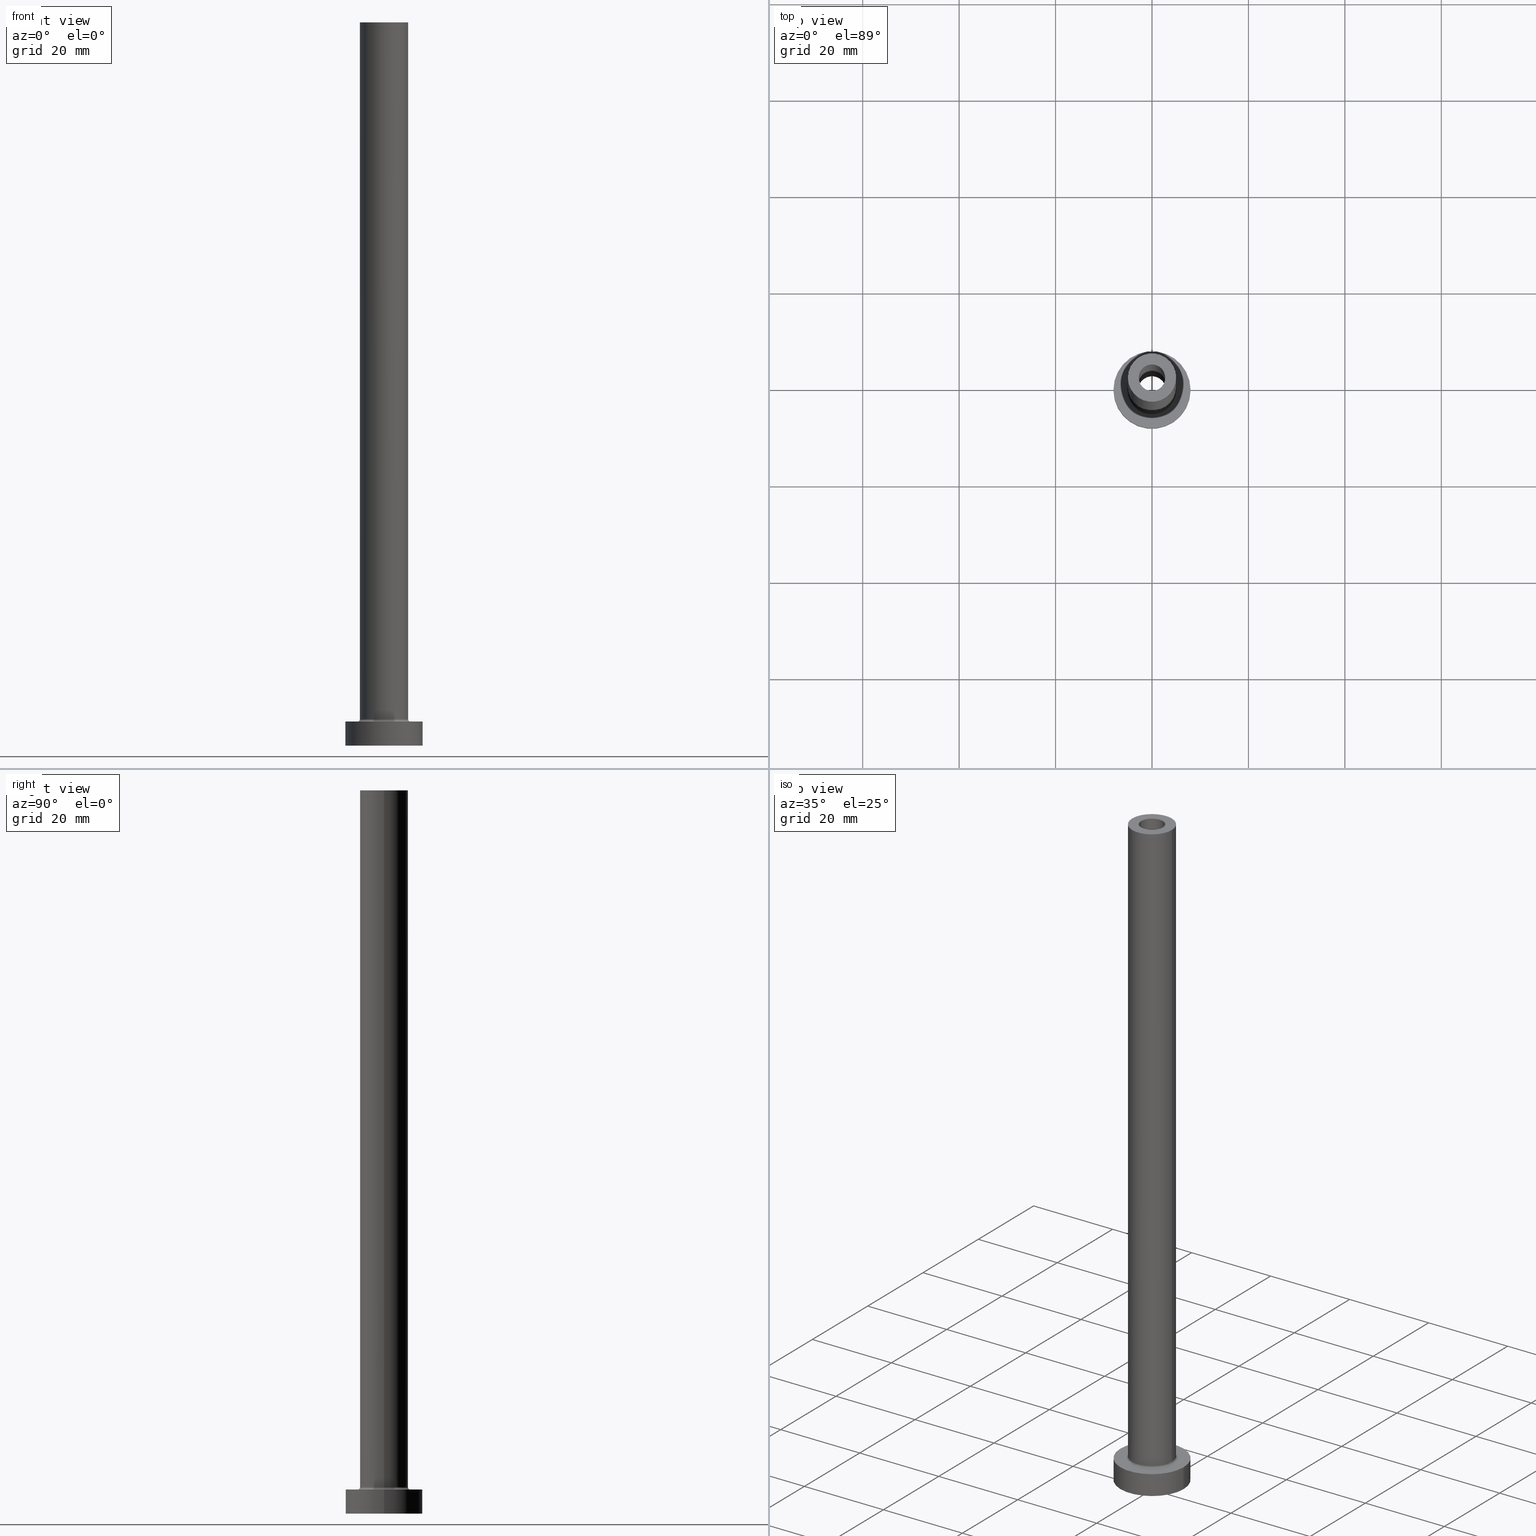
[diagram: canonical four-view strip — front | top / right | iso, engineering-drawing reading convention]
A machine part, canonical four-view strip (front | top / right | iso — engineering-drawing reading convention). The complete STEP part file that produces these views, byte-faithful:
ISO-10303-21;
HEADER;
FILE_DESCRIPTION (( 'STEP AP203' ),
    '1' );
FILE_NAME ('7f42.STEP',
    '2023-02-13T16:15:07',
    ( '' ),
    ( '' ),
    'SwSTEP 2.0',
    'SolidWorks 2019',
    '' );
FILE_SCHEMA (( 'CONFIG_CONTROL_DESIGN' ));
ENDSEC;

DATA;
#1 = EDGE_LOOP ( 'NONE', ( #95, #261 ) ) ;
#2 = EDGE_CURVE ( 'NONE', #277, #102, #246, .T. ) ;
#3 = ORIENTED_EDGE ( 'NONE', *, *, #429, .T. ) ;
#4 = ORIENTED_EDGE ( 'NONE', *, *, #259, .T. ) ;
#5 = AXIS2_PLACEMENT_3D ( 'NONE', #251, #390, #75 ) ;
#6 = FACE_OUTER_BOUND ( 'NONE', #455, .T. ) ;
#7 = DIRECTION ( 'NONE',  ( 1.000000000000000000, 0.000000000000000000, 0.000000000000000000 ) ) ;
#8 = AXIS2_PLACEMENT_3D ( 'NONE', #448, #89, #224 ) ;
#9 = DIRECTION ( 'NONE',  ( 1.000000000000000000, 0.000000000000000000, 0.000000000000000000 ) ) ;
#10 = ADVANCED_FACE ( 'NONE', ( #204, #308 ), #348, .F. ) ;
#11 = AXIS2_PLACEMENT_3D ( 'NONE', #151, #437, #260 ) ;
#12 = DIRECTION ( 'NONE',  ( 1.000000000000000000, 0.000000000000000000, 0.000000000000000000 ) ) ;
#13 = LOCAL_TIME ( 17, 15, 7.000000000000000000, #450 ) ;
#14 = EDGE_CURVE ( 'NONE', #401, #141, #198, .T. ) ;
#15 = ORIENTED_EDGE ( 'NONE', *, *, #51, .T. ) ;
#16 = APPROVAL_STATUS ( 'not_yet_approved' ) ;
#17 = DIRECTION ( 'NONE',  ( 0.000000000000000000, 0.000000000000000000, 1.000000000000000000 ) ) ;
#18 = AXIS2_PLACEMENT_3D ( 'NONE', #442, #165, #125 ) ;
#19 = DIRECTION ( 'NONE',  ( 0.000000000000000000, 0.000000000000000000, 1.000000000000000000 ) ) ;
#20 = LINE ( 'NONE', #451, #279 ) ;
#21 = AXIS2_PLACEMENT_3D ( 'NONE', #323, #148, #81 ) ;
#22 = DIRECTION ( 'NONE',  ( 1.000000000000000000, 0.000000000000000000, 0.000000000000000000 ) ) ;
#23 = FACE_OUTER_BOUND ( 'NONE', #213, .T. ) ;
#24 = AXIS2_PLACEMENT_3D ( 'NONE', #172, #210, #461 ) ;
#25 = DIRECTION ( 'NONE',  ( -0.000000000000000000, -0.000000000000000000, -1.000000000000000000 ) ) ;
#26 = CALENDAR_DATE ( 2023, 13, 2 ) ;
#27 = EDGE_LOOP ( 'NONE', ( #205, #202, #37, #139 ) ) ;
#28 = VERTEX_POINT ( 'NONE', #384 ) ;
#29 = CARTESIAN_POINT ( 'NONE',  ( 8.000000000000000000, 9.797174393178825657E-16, 5.000000000000000000 ) ) ;
#30 = PERSON ( 'NEUR�EN�', 'NEUR�EN�', 'NEUR�EN�', ('NEUR�EN�'), ('NEUR�EN�'), ('NEUR�EN�') ) ;
#31 = DIRECTION ( 'NONE',  ( 0.000000000000000000, 0.000000000000000000, 1.000000000000000000 ) ) ;
#32 = APPROVAL ( #271, 'NEUR�EN�' ) ;
#33 = EDGE_LOOP ( 'NONE', ( #284, #380 ) ) ;
#34 = CARTESIAN_POINT ( 'NONE',  ( 0.000000000000000000, 0.000000000000000000, 150.0000000000000000 ) ) ;
#35 = EDGE_LOOP ( 'NONE', ( #349, #422 ) ) ;
#36 = AXIS2_PLACEMENT_3D ( 'NONE', #406, #371, #55 ) ;
#37 = ORIENTED_EDGE ( 'NONE', *, *, #97, .T. ) ;
#38 = ORIENTED_EDGE ( 'NONE', *, *, #114, .F. ) ;
#39 = CARTESIAN_POINT ( 'NONE',  ( -5.000000000000000000, 0.000000000000000000, 5.500000000000005329 ) ) ;
#40 = EDGE_CURVE ( 'NONE', #67, #378, #375, .T. ) ;
#41 = AXIS2_PLACEMENT_3D ( 'NONE', #413, #268, #304 ) ;
#42 = ADVANCED_FACE ( 'NONE', ( #146 ), #140, .F. ) ;
#43 = DIRECTION ( 'NONE',  ( -0.000000000000000000, -0.000000000000000000, -1.000000000000000000 ) ) ;
#44 = AXIS2_PLACEMENT_3D ( 'NONE', #343, #31, #69 ) ;
#45 = PERSON_AND_ORGANIZATION_ROLE ( 'design_supplier' ) ;
#46 = EDGE_LOOP ( 'NONE', ( #281, #129, #354, #70 ) ) ;
#47 = CARTESIAN_POINT ( 'NONE',  ( -2.750000000000000000, 0.000000000000000000, 150.0000000000000000 ) ) ;
#48 = CARTESIAN_POINT ( 'NONE',  ( 0.000000000000000000, 0.000000000000000000, 150.0000000000000000 ) ) ;
#49 = EDGE_LOOP ( 'NONE', ( #38, #99 ) ) ;
#50 = CARTESIAN_POINT ( 'NONE',  ( 0.000000000000000000, 0.000000000000000000, 5.000000000000000000 ) ) ;
#51 = EDGE_CURVE ( 'NONE', #459, #334, #425, .T. ) ;
#52 = ORGANIZATION ( 'NEUR�EN�', 'NEUR�EN�', '' ) ;
#53 = APPROVAL_ROLE ( '' ) ;
#54 = FACE_OUTER_BOUND ( 'NONE', #35, .T. ) ;
#55 = DIRECTION ( 'NONE',  ( 1.000000000000000000, 0.000000000000000000, 0.000000000000000000 ) ) ;
#56 = CARTESIAN_POINT ( 'NONE',  ( 5.000000000000000000, 6.123233995736766282E-16, 5.500000000000005329 ) ) ;
#57 = CALENDAR_DATE ( 2023, 13, 2 ) ;
#58 = CARTESIAN_POINT ( 'NONE',  ( 0.000000000000000000, 0.000000000000000000, 105.0000000000000000 ) ) ;
#59 = APPROVAL_DATE_TIME ( #280, #32 ) ;
#60 = VECTOR ( 'NONE', #87, 1000.000000000000000 ) ;
#61 = CC_DESIGN_APPROVAL ( #232, ( #331 ) ) ;
#62 = ORIENTED_EDGE ( 'NONE', *, *, #14, .T. ) ;
#63 = DIRECTION ( 'NONE',  ( -0.000000000000000000, -0.000000000000000000, -1.000000000000000000 ) ) ;
#64 = DIRECTION ( 'NONE',  ( 0.000000000000000000, 0.000000000000000000, -1.000000000000000000 ) ) ;
#65 = ADVANCED_FACE ( 'NONE', ( #6 ), #142, .F. ) ;
#66 = ORIENTED_EDGE ( 'NONE', *, *, #118, .F. ) ;
#67 = VERTEX_POINT ( 'NONE', #359 ) ;
#68 = LINE ( 'NONE', #92, #270 ) ;
#69 = DIRECTION ( 'NONE',  ( 1.000000000000000000, 0.000000000000000000, -0.000000000000000000 ) ) ;
#70 = ORIENTED_EDGE ( 'NONE', *, *, #114, .T. ) ;
#71 = DIRECTION ( 'NONE',  ( 1.000000000000000000, 0.000000000000000000, 0.000000000000000000 ) ) ;
#72 = ORIENTED_EDGE ( 'NONE', *, *, #105, .F. ) ;
#73 = CIRCLE ( 'NONE', #407, 8.000000000000000000 ) ;
#74 = VERTEX_POINT ( 'NONE', #39 ) ;
#75 = DIRECTION ( 'NONE',  ( -1.000000000000000000, 0.000000000000000000, 0.000000000000000000 ) ) ;
#76 = DIRECTION ( 'NONE',  ( 1.000000000000000000, 0.000000000000000000, 0.000000000000000000 ) ) ;
#77 = DIRECTION ( 'NONE',  ( 1.000000000000000000, 0.000000000000000000, 0.000000000000000000 ) ) ;
#78 = EDGE_CURVE ( 'NONE', #426, #277, #398, .T. ) ;
#79 = CALENDAR_DATE ( 2023, 13, 2 ) ;
#80 = AXIS2_PLACEMENT_3D ( 'NONE', #158, #63, #269 ) ;
#81 = DIRECTION ( 'NONE',  ( 1.000000000000000000, 0.000000000000000000, 0.000000000000000000 ) ) ;
#82 = EDGE_CURVE ( 'NONE', #322, #319, #295, .T. ) ;
#83 = CIRCLE ( 'NONE', #41, 0.5000000000000004441 ) ;
#84 = CARTESIAN_POINT ( 'NONE',  ( 2.750000000000000000, 3.367778697655220519E-16, 105.0000000000000000 ) ) ;
#85 = CALENDAR_DATE ( 2023, 13, 2 ) ;
#86 = EDGE_LOOP ( 'NONE', ( #247, #170 ) ) ;
#87 = DIRECTION ( 'NONE',  ( 0.000000000000000000, 0.000000000000000000, -1.000000000000000000 ) ) ;
#88 = EDGE_CURVE ( 'NONE', #387, #74, #98, .T. ) ;
#89 = DIRECTION ( 'NONE',  ( 0.000000000000000000, 0.000000000000000000, 1.000000000000000000 ) ) ;
#90 = PERSON_AND_ORGANIZATION_ROLE ( 'classification_officer' ) ;
#91 = AXIS2_PLACEMENT_3D ( 'NONE', #209, #100, #273 ) ;
#92 = CARTESIAN_POINT ( 'NONE',  ( -5.000000000000000000, 0.000000000000000000, 150.0000000000000000 ) ) ;
#93 = DIRECTION ( 'NONE',  ( -1.000000000000000000, 0.000000000000000000, 0.000000000000000000 ) ) ;
#94 = CYLINDRICAL_SURFACE ( 'NONE', #306, 2.750000000000000000 ) ;
#95 = ORIENTED_EDGE ( 'NONE', *, *, #105, .T. ) ;
#96 = LINE ( 'NONE', #234, #263 ) ;
#97 = EDGE_CURVE ( 'NONE', #387, #401, #254, .T. ) ;
#98 = CIRCLE ( 'NONE', #358, 5.000000000000000000 ) ;
#99 = ORIENTED_EDGE ( 'NONE', *, *, #51, .F. ) ;
#100 = DIRECTION ( 'NONE',  ( 0.000000000000000000, 0.000000000000000000, 1.000000000000000000 ) ) ;
#101 = AXIS2_PLACEMENT_3D ( 'NONE', #58, #109, #138 ) ;
#102 = VERTEX_POINT ( 'NONE', #84 ) ;
#103 = ORIENTED_EDGE ( 'NONE', *, *, #2, .F. ) ;
#104 = DIRECTION ( 'NONE',  ( 0.000000000000000000, 0.000000000000000000, 1.000000000000000000 ) ) ;
#105 = EDGE_CURVE ( 'NONE', #130, #435, #330, .T. ) ;
#106 = PERSON_AND_ORGANIZATION ( #30, #52 ) ;
#107 = EDGE_LOOP ( 'NONE', ( #382, #312 ) ) ;
#108 = DIRECTION ( 'NONE',  ( -0.000000000000000000, -0.000000000000000000, -1.000000000000000000 ) ) ;
#109 = DIRECTION ( 'NONE',  ( 0.000000000000000000, 0.000000000000000000, 1.000000000000000000 ) ) ;
#110 = EDGE_LOOP ( 'NONE', ( #274, #438, #180, #207 ) ) ;
#111 = CIRCLE ( 'NONE', #91, 8.000000000000000000 ) ;
#112 = ADVANCED_FACE ( 'NONE', ( #177 ), #300, .T. ) ;
#113 = CLOSED_SHELL ( 'NONE', ( #316, #307, #42, #143, #112, #160, #214, #181, #226, #395, #255, #117, #10, #65 ) ) ;
#114 = EDGE_CURVE ( 'NONE', #334, #459, #427, .T. ) ;
#115 = APPROVAL_DATE_TIME ( #430, #232 ) ;
#116 = AXIS2_PLACEMENT_3D ( 'NONE', #326, #221, #77 ) ;
#117 = ADVANCED_FACE ( 'NONE', ( #386 ), #357, .F. ) ;
#118 = EDGE_CURVE ( 'NONE', #74, #387, #183, .T. ) ;
#119 = AXIS2_PLACEMENT_3D ( 'NONE', #449, #458, #453 ) ;
#120 = DATE_AND_TIME ( #336, #440 ) ;
#121 = PRODUCT_DEFINITION_SHAPE ( 'NONE', 'NONE',  #286 ) ;
#122 = CARTESIAN_POINT ( 'NONE',  ( 0.000000000000000000, 0.000000000000000000, 150.0000000000000000 ) ) ;
#123 = CC_DESIGN_PERSON_AND_ORGANIZATION_ASSIGNMENT ( #363, #397, ( #331 ) ) ;
#124 = CARTESIAN_POINT ( 'NONE',  ( 0.000000000000000000, 0.000000000000000000, 5.500000000000005329 ) ) ;
#125 = DIRECTION ( 'NONE',  ( 1.000000000000000000, 0.000000000000000000, -0.000000000000000000 ) ) ;
#126 = CARTESIAN_POINT ( 'NONE',  ( 0.000000000000000000, 0.000000000000000000, 5.000000000000000000 ) ) ;
#127 = ORIENTED_EDGE ( 'NONE', *, *, #443, .F. ) ;
#128 = CC_DESIGN_PERSON_AND_ORGANIZATION_ASSIGNMENT ( #155, #90, ( #332 ) ) ;
#129 = ORIENTED_EDGE ( 'NONE', *, *, #40, .T. ) ;
#130 = VERTEX_POINT ( 'NONE', #190 ) ;
#131 = DIRECTION ( 'NONE',  ( -1.000000000000000000, 0.000000000000000000, 0.000000000000000000 ) ) ;
#132 = APPLICATION_PROTOCOL_DEFINITION ( 'international standard', 'config_control_design', 1994, #236 ) ;
#133 = AXIS2_PLACEMENT_3D ( 'NONE', #122, #17, #262 ) ;
#134 = VERTEX_POINT ( 'NONE', #215 ) ;
#135 = CARTESIAN_POINT ( 'NONE',  ( -2.899999999999999911, 0.000000000000000000, 105.0000000000000000 ) ) ;
#136 = CC_DESIGN_DATE_AND_TIME_ASSIGNMENT ( #191, #195, ( #332 ) ) ;
#137 = ORIENTED_EDGE ( 'NONE', *, *, #253, .T. ) ;
#138 = DIRECTION ( 'NONE',  ( 1.000000000000000000, 0.000000000000000000, 0.000000000000000000 ) ) ;
#139 = ORIENTED_EDGE ( 'NONE', *, *, #416, .F. ) ;
#140 = TOROIDAL_SURFACE ( 'NONE', #159, 5.500000000000000000, 0.5000000000000000000 ) ;
#141 = VERTEX_POINT ( 'NONE', #258 ) ;
#142 = CYLINDRICAL_SURFACE ( 'NONE', #5, 2.750000000000000000 ) ;
#143 = ADVANCED_FACE ( 'NONE', ( #291 ), #431, .T. ) ;
#144 = AXIS2_PLACEMENT_3D ( 'NONE', #415, #383, #206 ) ;
#145 = DIRECTION ( 'NONE',  ( 0.000000000000000000, 0.000000000000000000, 1.000000000000000000 ) ) ;
#146 = FACE_OUTER_BOUND ( 'NONE', #235, .T. ) ;
#147 = FACE_OUTER_BOUND ( 'NONE', #179, .T. ) ;
#148 = DIRECTION ( 'NONE',  ( -0.000000000000000000, -0.000000000000000000, -1.000000000000000000 ) ) ;
#149 = LOCAL_TIME ( 17, 15, 7.000000000000000000, #411 ) ;
#150 = EDGE_CURVE ( 'NONE', #426, #28, #399, .T. ) ;
#151 = CARTESIAN_POINT ( 'NONE',  ( 5.500000000000000000, 0.000000000000000000, 5.500000000000005329 ) ) ;
#152 = ORIENTED_EDGE ( 'NONE', *, *, #88, .T. ) ;
#153 = DIRECTION ( 'NONE',  ( -1.000000000000000000, 0.000000000000000000, 0.000000000000000000 ) ) ;
#154 = CARTESIAN_POINT ( 'NONE',  ( 0.000000000000000000, 0.000000000000000000, 0.000000000000000000 ) ) ;
#155 = PERSON_AND_ORGANIZATION ( #30, #52 ) ;
#156 = LINE ( 'NONE', #299, #60 ) ;
#157 = MANIFOLD_SOLID_BREP ( 'Odebrat vysunut�m4', #113 ) ;
#158 = CARTESIAN_POINT ( 'NONE',  ( 0.000000000000000000, 0.000000000000000000, 5.000000000000000000 ) ) ;
#159 = AXIS2_PLACEMENT_3D ( 'NONE', #360, #327, #9 ) ;
#160 = ADVANCED_FACE ( 'NONE', ( #147 ), #290, .T. ) ;
#161 = ORIENTED_EDGE ( 'NONE', *, *, #168, .T. ) ;
#162 = DIRECTION ( 'NONE',  ( 0.000000000000000000, 0.000000000000000000, -1.000000000000000000 ) ) ;
#163 = AXIS2_PLACEMENT_3D ( 'NONE', #320, #108, #388 ) ;
#164 = AXIS2_PLACEMENT_3D ( 'NONE', #445, #409, #93 ) ;
#165 = DIRECTION ( 'NONE',  ( 0.000000000000000000, 0.000000000000000000, 1.000000000000000000 ) ) ;
#166 = LINE ( 'NONE', #29, #394 ) ;
#167 = DATE_AND_TIME ( #26, #13 ) ;
#168 = EDGE_CURVE ( 'NONE', #435, #387, #434, .T. ) ;
#169 = ORIENTED_EDGE ( 'NONE', *, *, #429, .F. ) ;
#170 = ORIENTED_EDGE ( 'NONE', *, *, #40, .F. ) ;
#171 = FACE_OUTER_BOUND ( 'NONE', #1, .T. ) ;
#172 = CARTESIAN_POINT ( 'NONE',  ( 0.000000000000000000, 0.000000000000000000, 105.0000000000000000 ) ) ;
#173 = CIRCLE ( 'NONE', #133, 5.000000000000000000 ) ;
#174 = CARTESIAN_POINT ( 'NONE',  ( 0.000000000000000000, 0.000000000000000000, 5.000000000000000000 ) ) ;
#175 = CC_DESIGN_APPROVAL ( #351, ( #332 ) ) ;
#176 = ORIENTED_EDGE ( 'NONE', *, *, #416, .T. ) ;
#177 = FACE_OUTER_BOUND ( 'NONE', #212, .T. ) ;
#178 = PRODUCT ( '7f42', '7f42', '', ( #276 ) ) ;
#179 = EDGE_LOOP ( 'NONE', ( #127, #288, #230, #294 ) ) ;
#180 = ORIENTED_EDGE ( 'NONE', *, *, #372, .F. ) ;
#181 = ADVANCED_FACE ( 'NONE', ( #199, #54 ), #369, .F. ) ;
#182 = CARTESIAN_POINT ( 'NONE',  ( 0.000000000000000000, 0.000000000000000000, 105.0000000000000000 ) ) ;
#183 = CIRCLE ( 'NONE', #116, 5.000000000000000000 ) ;
#184 = EDGE_CURVE ( 'NONE', #378, #334, #20, .T. ) ;
#185 = VECTOR ( 'NONE', #287, 1000.000000000000000 ) ;
#186 = CARTESIAN_POINT ( 'NONE',  ( 0.000000000000000000, 0.000000000000000000, 150.0000000000000000 ) ) ;
#187 = APPROVAL_PERSON_ORGANIZATION ( #106, #232, #53 ) ;
#188 = CC_DESIGN_SECURITY_CLASSIFICATION ( #332, ( #331 ) ) ;
#189 = DIRECTION ( 'NONE',  ( 0.000000000000000000, 0.000000000000000000, 1.000000000000000000 ) ) ;
#190 = CARTESIAN_POINT ( 'NONE',  ( -5.000000000000000000, 0.000000000000000000, 150.0000000000000000 ) ) ;
#191 = DATE_AND_TIME ( #85, #264 ) ;
#192 = EDGE_CURVE ( 'NONE', #435, #130, #173, .T. ) ;
#193 = FACE_OUTER_BOUND ( 'NONE', #412, .T. ) ;
#194 = CARTESIAN_POINT ( 'NONE',  ( 0.000000000000000000, 0.000000000000000000, 150.0000000000000000 ) ) ;
#195 = DATE_TIME_ROLE ( 'classification_date' ) ;
#196 = FACE_OUTER_BOUND ( 'NONE', #344, .T. ) ;
#197 = FACE_BOUND ( 'NONE', #417, .T. ) ;
#198 = CIRCLE ( 'NONE', #314, 5.500000000000000000 ) ;
#199 = FACE_BOUND ( 'NONE', #49, .T. ) ;
#200 = AXIS2_PLACEMENT_3D ( 'NONE', #194, #337, #153 ) ;
#201 = EDGE_CURVE ( 'NONE', #67, #459, #156, .T. ) ;
#202 = ORIENTED_EDGE ( 'NONE', *, *, #88, .F. ) ;
#203 = CC_DESIGN_DATE_AND_TIME_ASSIGNMENT ( #167, #421, ( #286 ) ) ;
#204 = FACE_BOUND ( 'NONE', #33, .T. ) ;
#205 = ORIENTED_EDGE ( 'NONE', *, *, #259, .F. ) ;
#206 = DIRECTION ( 'NONE',  ( 1.000000000000000000, 0.000000000000000000, -0.000000000000000000 ) ) ;
#207 = ORIENTED_EDGE ( 'NONE', *, *, #150, .F. ) ;
#208 = ORIENTED_EDGE ( 'NONE', *, *, #237, .F. ) ;
#209 = CARTESIAN_POINT ( 'NONE',  ( 0.000000000000000000, 0.000000000000000000, 0.000000000000000000 ) ) ;
#210 = DIRECTION ( 'NONE',  ( 0.000000000000000000, 0.000000000000000000, 1.000000000000000000 ) ) ;
#211 = CC_DESIGN_APPROVAL ( #32, ( #286 ) ) ;
#212 = EDGE_LOOP ( 'NONE', ( #249, #356, #272, #310 ) ) ;
#213 = EDGE_LOOP ( 'NONE', ( #436, #447, #15, #243 ) ) ;
#214 = ADVANCED_FACE ( 'NONE', ( #197, #196 ), #444, .T. ) ;
#215 = CARTESIAN_POINT ( 'NONE',  ( 8.000000000000000000, 9.797174393178825657E-16, 5.000000000000000000 ) ) ;
#216 = ADVANCED_BREP_SHAPE_REPRESENTATION ( '7f42', ( #157, #353 ), #460 ) ;
#217 =( LENGTH_UNIT ( ) NAMED_UNIT ( * ) SI_UNIT ( .MILLI., .METRE. ) );
#218 = CARTESIAN_POINT ( 'NONE',  ( 0.000000000000000000, 0.000000000000000000, 150.0000000000000000 ) ) ;
#219 = CARTESIAN_POINT ( 'NONE',  ( 0.000000000000000000, 0.000000000000000000, 5.000000000000000000 ) ) ;
#220 = PERSON_AND_ORGANIZATION ( #30, #52 ) ;
#221 = DIRECTION ( 'NONE',  ( 0.000000000000000000, 0.000000000000000000, 1.000000000000000000 ) ) ;
#222 = AXIS2_PLACEMENT_3D ( 'NONE', #373, #104, #71 ) ;
#223 = DIRECTION ( 'NONE',  ( 0.000000000000000000, 0.000000000000000000, 1.000000000000000000 ) ) ;
#224 = DIRECTION ( 'NONE',  ( 1.000000000000000000, 0.000000000000000000, 0.000000000000000000 ) ) ;
#225 = COORDINATED_UNIVERSAL_TIME_OFFSET ( 1, 0, .AHEAD. ) ;
#226 = ADVANCED_FACE ( 'NONE', ( #193 ), #227, .T. ) ;
#227 = CYLINDRICAL_SURFACE ( 'NONE', #200, 5.000000000000000000 ) ;
#228 = VECTOR ( 'NONE', #403, 1000.000000000000000 ) ;
#229 = DIRECTION ( 'NONE',  ( 0.000000000000000000, 0.000000000000000000, 1.000000000000000000 ) ) ;
#230 = ORIENTED_EDGE ( 'NONE', *, *, #265, .T. ) ;
#231 = DIRECTION ( 'NONE',  ( 1.000000000000000000, 0.000000000000000000, -0.000000000000000000 ) ) ;
#232 = APPROVAL ( #454, 'NEUR�EN�' ) ;
#233 = CARTESIAN_POINT ( 'NONE',  ( 5.000000000000000000, 6.123233995736766282E-16, 150.0000000000000000 ) ) ;
#234 = CARTESIAN_POINT ( 'NONE',  ( -8.000000000000000000, 0.000000000000000000, 5.000000000000000000 ) ) ;
#235 = EDGE_LOOP ( 'NONE', ( #66, #4, #315, #441 ) ) ;
#236 = APPLICATION_CONTEXT ( 'configuration controlled 3d designs of mechanical parts and assemblies' ) ;
#237 = EDGE_CURVE ( 'NONE', #102, #28, #238, .T. ) ;
#238 = CIRCLE ( 'NONE', #8, 2.750000000000000000 ) ;
#239 = CARTESIAN_POINT ( 'NONE',  ( 2.750000000000000000, 3.367778697655220519E-16, 150.0000000000000000 ) ) ;
#240 = ORIENTED_EDGE ( 'NONE', *, *, #118, .T. ) ;
#241 = FACE_BOUND ( 'NONE', #107, .T. ) ;
#242 = FACE_OUTER_BOUND ( 'NONE', #110, .T. ) ;
#243 = ORIENTED_EDGE ( 'NONE', *, *, #184, .F. ) ;
#244 = DIRECTION ( 'NONE',  ( -0.000000000000000000, -0.000000000000000000, -1.000000000000000000 ) ) ;
#245 = DIRECTION ( 'NONE',  ( 0.000000000000000000, 0.000000000000000000, 1.000000000000000000 ) ) ;
#246 = LINE ( 'NONE', #239, #185 ) ;
#247 = ORIENTED_EDGE ( 'NONE', *, *, #298, .F. ) ;
#248 = AXIS2_PLACEMENT_3D ( 'NONE', #186, #256, #396 ) ;
#249 = ORIENTED_EDGE ( 'NONE', *, *, #389, .F. ) ;
#250 = PRODUCT_RELATED_PRODUCT_CATEGORY ( 'detail', '', ( #178 ) ) ;
#251 = CARTESIAN_POINT ( 'NONE',  ( 0.000000000000000000, 0.000000000000000000, 150.0000000000000000 ) ) ;
#252 = DIRECTION ( 'NONE',  ( 1.000000000000000000, 0.000000000000000000, 0.000000000000000000 ) ) ;
#253 = EDGE_CURVE ( 'NONE', #424, #134, #73, .T. ) ;
#254 = CIRCLE ( 'NONE', #11, 0.5000000000000004441 ) ;
#255 = ADVANCED_FACE ( 'NONE', ( #404 ), #317, .F. ) ;
#256 = DIRECTION ( 'NONE',  ( -0.000000000000000000, -0.000000000000000000, -1.000000000000000000 ) ) ;
#257 = AXIS2_PLACEMENT_3D ( 'NONE', #218, #145, #289 ) ;
#258 = CARTESIAN_POINT ( 'NONE',  ( -5.500000000000000000, 6.735557395310442023E-16, 5.000000000000002665 ) ) ;
#259 = EDGE_CURVE ( 'NONE', #74, #141, #83, .T. ) ;
#260 = DIRECTION ( 'NONE',  ( 0.000000000000000000, 0.000000000000000000, -1.000000000000000000 ) ) ;
#261 = ORIENTED_EDGE ( 'NONE', *, *, #192, .T. ) ;
#262 = DIRECTION ( 'NONE',  ( 1.000000000000000000, 0.000000000000000000, 0.000000000000000000 ) ) ;
#263 = VECTOR ( 'NONE', #282, 1000.000000000000000 ) ;
#264 = LOCAL_TIME ( 17, 15, 7.000000000000000000, #225 ) ;
#265 = EDGE_CURVE ( 'NONE', #424, #322, #96, .T. ) ;
#266 = DESIGN_CONTEXT ( 'detailed design', #236, 'design' ) ;
#267 = DIRECTION ( 'NONE',  ( 1.000000000000000000, 0.000000000000000000, 0.000000000000000000 ) ) ;
#268 = DIRECTION ( 'NONE',  ( 1.224646799147353207E-16, 1.000000000000000000, -0.000000000000000000 ) ) ;
#269 = DIRECTION ( 'NONE',  ( 1.000000000000000000, 0.000000000000000000, 0.000000000000000000 ) ) ;
#270 = VECTOR ( 'NONE', #25, 1000.000000000000000 ) ;
#271 = APPROVAL_STATUS ( 'not_yet_approved' ) ;
#272 = ORIENTED_EDGE ( 'NONE', *, *, #405, .T. ) ;
#273 = DIRECTION ( 'NONE',  ( 1.000000000000000000, 0.000000000000000000, 0.000000000000000000 ) ) ;
#274 = ORIENTED_EDGE ( 'NONE', *, *, #78, .T. ) ;
#275 = AXIS2_PLACEMENT_3D ( 'NONE', #428, #229, #12 ) ;
#276 = MECHANICAL_CONTEXT ( 'NONE', #446, 'mechanical' ) ;
#277 = VERTEX_POINT ( 'NONE', #321 ) ;
#278 = CARTESIAN_POINT ( 'NONE',  ( 8.000000000000000000, 9.797174393178825657E-16, 0.000000000000000000 ) ) ;
#279 = VECTOR ( 'NONE', #162, 1000.000000000000000 ) ;
#280 = DATE_AND_TIME ( #57, #149 ) ;
#281 = ORIENTED_EDGE ( 'NONE', *, *, #201, .F. ) ;
#282 = DIRECTION ( 'NONE',  ( -0.000000000000000000, -0.000000000000000000, -1.000000000000000000 ) ) ;
#283 = DIRECTION ( 'NONE',  ( 1.000000000000000000, 0.000000000000000000, 0.000000000000000000 ) ) ;
#284 = ORIENTED_EDGE ( 'NONE', *, *, #372, .T. ) ;
#285 = DIRECTION ( 'NONE',  ( 1.000000000000000000, 0.000000000000000000, 0.000000000000000000 ) ) ;
#286 = PRODUCT_DEFINITION ( 'NEZN�M�', '', #331, #266 ) ;
#287 = DIRECTION ( 'NONE',  ( 0.000000000000000000, 0.000000000000000000, -1.000000000000000000 ) ) ;
#288 = ORIENTED_EDGE ( 'NONE', *, *, #253, .F. ) ;
#289 = DIRECTION ( 'NONE',  ( 1.000000000000000000, 0.000000000000000000, 0.000000000000000000 ) ) ;
#290 = CYLINDRICAL_SURFACE ( 'NONE', #400, 8.000000000000000000 ) ;
#291 = FACE_OUTER_BOUND ( 'NONE', #303, .T. ) ;
#292 = DIRECTION ( 'NONE',  ( -1.000000000000000000, 0.000000000000000000, 0.000000000000000000 ) ) ;
#293 = ORIENTED_EDGE ( 'NONE', *, *, #389, .T. ) ;
#294 = ORIENTED_EDGE ( 'NONE', *, *, #82, .T. ) ;
#295 = CIRCLE ( 'NONE', #275, 8.000000000000000000 ) ;
#296 = ORIENTED_EDGE ( 'NONE', *, *, #368, .T. ) ;
#297 = AXIS2_PLACEMENT_3D ( 'NONE', #350, #244, #285 ) ;
#298 = EDGE_CURVE ( 'NONE', #378, #67, #324, .T. ) ;
#299 = CARTESIAN_POINT ( 'NONE',  ( 2.899999999999999911, 3.551475717527323832E-16, 113.2024386617639493 ) ) ;
#300 = CYLINDRICAL_SURFACE ( 'NONE', #163, 8.000000000000000000 ) ;
#301 = PERSON_AND_ORGANIZATION ( #30, #52 ) ;
#302 = PERSON_AND_ORGANIZATION_ROLE ( 'creator' ) ;
#303 = EDGE_LOOP ( 'NONE', ( #414, #161, #152, #169 ) ) ;
#304 = DIRECTION ( 'NONE',  ( -1.000000000000000000, 1.224646799147351482E-16, 0.000000000000000000 ) ) ;
#305 = CARTESIAN_POINT ( 'NONE',  ( 5.500000000000000000, 0.000000000000000000, 5.000000000000002665 ) ) ;
#306 = AXIS2_PLACEMENT_3D ( 'NONE', #34, #64, #131 ) ;
#307 = ADVANCED_FACE ( 'NONE', ( #23 ), #346, .F. ) ;
#308 = FACE_OUTER_BOUND ( 'NONE', #86, .T. ) ;
#309 = CARTESIAN_POINT ( 'NONE',  ( 5.000000000000000000, 6.123233995736766282E-16, 150.0000000000000000 ) ) ;
#310 = ORIENTED_EDGE ( 'NONE', *, *, #265, .F. ) ;
#311 = APPROVAL_ROLE ( '' ) ;
#312 = ORIENTED_EDGE ( 'NONE', *, *, #368, .F. ) ;
#313 = DIRECTION ( 'NONE',  ( -0.000000000000000000, -0.000000000000000000, -1.000000000000000000 ) ) ;
#314 = AXIS2_PLACEMENT_3D ( 'NONE', #174, #318, #283 ) ;
#315 = ORIENTED_EDGE ( 'NONE', *, *, #14, .F. ) ;
#316 = ADVANCED_FACE ( 'NONE', ( #242 ), #94, .F. ) ;
#317 = TOROIDAL_SURFACE ( 'NONE', #36, 5.500000000000000000, 0.5000000000000000000 ) ;
#318 = DIRECTION ( 'NONE',  ( -0.000000000000000000, -0.000000000000000000, -1.000000000000000000 ) ) ;
#319 = VERTEX_POINT ( 'NONE', #278 ) ;
#320 = CARTESIAN_POINT ( 'NONE',  ( 0.000000000000000000, 0.000000000000000000, 5.000000000000000000 ) ) ;
#321 = CARTESIAN_POINT ( 'NONE',  ( 2.750000000000000000, 3.367778697655220519E-16, 150.0000000000000000 ) ) ;
#322 = VERTEX_POINT ( 'NONE', #419 ) ;
#323 = CARTESIAN_POINT ( 'NONE',  ( 0.000000000000000000, 0.000000000000000000, 0.000000000000000000 ) ) ;
#324 = CIRCLE ( 'NONE', #101, 2.899999999999999911 ) ;
#325 = APPROVAL_PERSON_ORGANIZATION ( #301, #351, #439 ) ;
#326 = CARTESIAN_POINT ( 'NONE',  ( 0.000000000000000000, 0.000000000000000000, 5.500000000000005329 ) ) ;
#327 = DIRECTION ( 'NONE',  ( 0.000000000000000000, 0.000000000000000000, 1.000000000000000000 ) ) ;
#328 = APPLICATION_PROTOCOL_DEFINITION ( 'international standard', 'config_control_design', 1994, #446 ) ;
#329 = SECURITY_CLASSIFICATION_LEVEL ( 'unclassified' ) ;
#330 = CIRCLE ( 'NONE', #367, 5.000000000000000000 ) ;
#331 = PRODUCT_DEFINITION_FORMATION_WITH_SPECIFIED_SOURCE ( 'LIBOVOLN�', '', #178, .NOT_KNOWN. ) ;
#332 = SECURITY_CLASSIFICATION ( '', '', #329 ) ;
#333 = DIRECTION ( 'NONE',  ( 1.000000000000000000, 0.000000000000000000, 0.000000000000000000 ) ) ;
#334 = VERTEX_POINT ( 'NONE', #381 ) ;
#335 = DIRECTION ( 'NONE',  ( 0.000000000000000000, 0.000000000000000000, -1.000000000000000000 ) ) ;
#336 = CALENDAR_DATE ( 2023, 13, 2 ) ;
#337 = DIRECTION ( 'NONE',  ( -0.000000000000000000, -0.000000000000000000, -1.000000000000000000 ) ) ;
#338 = VECTOR ( 'NONE', #335, 1000.000000000000000 ) ;
#339 = APPROVAL_DATE_TIME ( #120, #351 ) ;
#340 = DIRECTION ( 'NONE',  ( 0.000000000000000000, 0.000000000000000000, 1.000000000000000000 ) ) ;
#341 = AXIS2_PLACEMENT_3D ( 'NONE', #423, #245, #252 ) ;
#342 = PERSON_AND_ORGANIZATION ( #30, #52 ) ;
#343 = CARTESIAN_POINT ( 'NONE',  ( 0.000000000000000000, 0.000000000000000000, 105.0000000000000000 ) ) ;
#344 = EDGE_LOOP ( 'NONE', ( #137, #293 ) ) ;
#345 = CARTESIAN_POINT ( 'NONE',  ( -2.750000000000000000, 0.000000000000000000, 150.0000000000000000 ) ) ;
#346 = CYLINDRICAL_SURFACE ( 'NONE', #119, 2.899999999999999911 ) ;
#347 = PERSON_AND_ORGANIZATION ( #30, #52 ) ;
#348 = PLANE ( 'NONE',  #44 ) ;
#349 = ORIENTED_EDGE ( 'NONE', *, *, #82, .F. ) ;
#350 = CARTESIAN_POINT ( 'NONE',  ( 0.000000000000000000, 0.000000000000000000, 0.000000000000000000 ) ) ;
#351 = APPROVAL ( #16, 'NEUR�EN�' ) ;
#352 = DIRECTION ( 'NONE',  ( 0.000000000000000000, 0.000000000000000000, 1.000000000000000000 ) ) ;
#353 = AXIS2_PLACEMENT_3D ( 'NONE', #154, #223, #22 ) ;
#354 = ORIENTED_EDGE ( 'NONE', *, *, #184, .T. ) ;
#355 =( NAMED_UNIT ( * ) PLANE_ANGLE_UNIT ( ) SI_UNIT ( $, .RADIAN. ) );
#356 = ORIENTED_EDGE ( 'NONE', *, *, #443, .T. ) ;
#357 = CYLINDRICAL_SURFACE ( 'NONE', #164, 2.899999999999999911 ) ;
#358 = AXIS2_PLACEMENT_3D ( 'NONE', #124, #189, #333 ) ;
#359 = CARTESIAN_POINT ( 'NONE',  ( 2.899999999999999911, 3.551475717527323832E-16, 105.0000000000000000 ) ) ;
#360 = CARTESIAN_POINT ( 'NONE',  ( 0.000000000000000000, 0.000000000000000000, 5.500000000000005329 ) ) ;
#361 = CIRCLE ( 'NONE', #341, 8.000000000000000000 ) ;
#362 = LOCAL_TIME ( 17, 15, 7.000000000000000000, #392 ) ;
#363 = PERSON_AND_ORGANIZATION ( #30, #52 ) ;
#364 =( NAMED_UNIT ( * ) SI_UNIT ( $, .STERADIAN. ) SOLID_ANGLE_UNIT ( ) );
#365 = SHAPE_DEFINITION_REPRESENTATION ( #121, #216 ) ;
#366 = CIRCLE ( 'NONE', #222, 2.750000000000000000 ) ;
#367 = AXIS2_PLACEMENT_3D ( 'NONE', #48, #352, #7 ) ;
#368 = EDGE_CURVE ( 'NONE', #277, #426, #366, .T. ) ;
#369 = PLANE ( 'NONE',  #18 ) ;
#370 = APPROVAL_PERSON_ORGANIZATION ( #377, #32, #311 ) ;
#371 = DIRECTION ( 'NONE',  ( 0.000000000000000000, 0.000000000000000000, 1.000000000000000000 ) ) ;
#372 = EDGE_CURVE ( 'NONE', #28, #102, #418, .T. ) ;
#373 = CARTESIAN_POINT ( 'NONE',  ( 0.000000000000000000, 0.000000000000000000, 150.0000000000000000 ) ) ;
#374 = PERSON_AND_ORGANIZATION_ROLE ( 'design_owner' ) ;
#375 = CIRCLE ( 'NONE', #393, 2.899999999999999911 ) ;
#376 = PLANE ( 'NONE',  #144 ) ;
#377 = PERSON_AND_ORGANIZATION ( #30, #52 ) ;
#378 = VERTEX_POINT ( 'NONE', #135 ) ;
#379 = CIRCLE ( 'NONE', #80, 5.500000000000000000 ) ;
#380 = ORIENTED_EDGE ( 'NONE', *, *, #237, .T. ) ;
#381 = CARTESIAN_POINT ( 'NONE',  ( -2.899999999999999911, 0.000000000000000000, 0.000000000000000000 ) ) ;
#382 = ORIENTED_EDGE ( 'NONE', *, *, #78, .F. ) ;
#383 = DIRECTION ( 'NONE',  ( 0.000000000000000000, 0.000000000000000000, 1.000000000000000000 ) ) ;
#384 = CARTESIAN_POINT ( 'NONE',  ( -2.750000000000000000, 0.000000000000000000, 105.0000000000000000 ) ) ;
#385 = ORIENTED_EDGE ( 'NONE', *, *, #168, .F. ) ;
#386 = FACE_OUTER_BOUND ( 'NONE', #46, .T. ) ;
#387 = VERTEX_POINT ( 'NONE', #56 ) ;
#388 = DIRECTION ( 'NONE',  ( -1.000000000000000000, 0.000000000000000000, 0.000000000000000000 ) ) ;
#389 = EDGE_CURVE ( 'NONE', #134, #424, #361, .T. ) ;
#390 = DIRECTION ( 'NONE',  ( 0.000000000000000000, 0.000000000000000000, -1.000000000000000000 ) ) ;
#391 = DIRECTION ( 'NONE',  ( 0.000000000000000000, 0.000000000000000000, 1.000000000000000000 ) ) ;
#392 = COORDINATED_UNIVERSAL_TIME_OFFSET ( 1, 0, .AHEAD. ) ;
#393 = AXIS2_PLACEMENT_3D ( 'NONE', #182, #391, #76 ) ;
#394 = VECTOR ( 'NONE', #313, 1000.000000000000000 ) ;
#395 = ADVANCED_FACE ( 'NONE', ( #241, #171 ), #376, .T. ) ;
#396 = DIRECTION ( 'NONE',  ( -1.000000000000000000, 0.000000000000000000, 0.000000000000000000 ) ) ;
#397 = PERSON_AND_ORGANIZATION_ROLE ( 'creator' ) ;
#398 = CIRCLE ( 'NONE', #257, 2.750000000000000000 ) ;
#399 = LINE ( 'NONE', #47, #338 ) ;
#400 = AXIS2_PLACEMENT_3D ( 'NONE', #219, #43, #292 ) ;
#401 = VERTEX_POINT ( 'NONE', #305 ) ;
#402 = UNCERTAINTY_MEASURE_WITH_UNIT (LENGTH_MEASURE( 1.000000000000000082E-05 ), #217, 'distance_accuracy_value', 'NONE');
#403 = DIRECTION ( 'NONE',  ( -0.000000000000000000, -0.000000000000000000, -1.000000000000000000 ) ) ;
#404 = FACE_OUTER_BOUND ( 'NONE', #27, .T. ) ;
#405 = EDGE_CURVE ( 'NONE', #319, #322, #111, .T. ) ;
#406 = CARTESIAN_POINT ( 'NONE',  ( 0.000000000000000000, 0.000000000000000000, 5.500000000000005329 ) ) ;
#407 = AXIS2_PLACEMENT_3D ( 'NONE', #126, #19, #267 ) ;
#408 = CARTESIAN_POINT ( 'NONE',  ( -8.000000000000000000, 0.000000000000000000, 5.000000000000000000 ) ) ;
#409 = DIRECTION ( 'NONE',  ( 0.000000000000000000, 0.000000000000000000, -1.000000000000000000 ) ) ;
#410 = COORDINATED_UNIVERSAL_TIME_OFFSET ( 1, 0, .AHEAD. ) ;
#411 = COORDINATED_UNIVERSAL_TIME_OFFSET ( 1, 0, .AHEAD. ) ;
#412 = EDGE_LOOP ( 'NONE', ( #385, #72, #3, #240 ) ) ;
#413 = CARTESIAN_POINT ( 'NONE',  ( -5.500000000000000000, 6.735557395310442023E-16, 5.500000000000005329 ) ) ;
#414 = ORIENTED_EDGE ( 'NONE', *, *, #192, .F. ) ;
#415 = CARTESIAN_POINT ( 'NONE',  ( 0.000000000000000000, 0.000000000000000000, 150.0000000000000000 ) ) ;
#416 = EDGE_CURVE ( 'NONE', #141, #401, #379, .T. ) ;
#417 = EDGE_LOOP ( 'NONE', ( #62, #176 ) ) ;
#418 = CIRCLE ( 'NONE', #24, 2.750000000000000000 ) ;
#419 = CARTESIAN_POINT ( 'NONE',  ( -8.000000000000000000, 0.000000000000000000, 0.000000000000000000 ) ) ;
#420 = CC_DESIGN_PERSON_AND_ORGANIZATION_ASSIGNMENT ( #220, #45, ( #331 ) ) ;
#421 = DATE_TIME_ROLE ( 'creation_date' ) ;
#422 = ORIENTED_EDGE ( 'NONE', *, *, #405, .F. ) ;
#423 = CARTESIAN_POINT ( 'NONE',  ( 0.000000000000000000, 0.000000000000000000, 5.000000000000000000 ) ) ;
#424 = VERTEX_POINT ( 'NONE', #408 ) ;
#425 = CIRCLE ( 'NONE', #21, 2.899999999999999911 ) ;
#426 = VERTEX_POINT ( 'NONE', #345 ) ;
#427 = CIRCLE ( 'NONE', #297, 2.899999999999999911 ) ;
#428 = CARTESIAN_POINT ( 'NONE',  ( 0.000000000000000000, 0.000000000000000000, 0.000000000000000000 ) ) ;
#429 = EDGE_CURVE ( 'NONE', #130, #74, #68, .T. ) ;
#430 = DATE_AND_TIME ( #79, #362 ) ;
#431 = CYLINDRICAL_SURFACE ( 'NONE', #248, 5.000000000000000000 ) ;
#432 = CC_DESIGN_PERSON_AND_ORGANIZATION_ASSIGNMENT ( #347, #374, ( #178 ) ) ;
#433 = AXIS2_PLACEMENT_3D ( 'NONE', #50, #340, #231 ) ;
#434 = LINE ( 'NONE', #309, #228 ) ;
#435 = VERTEX_POINT ( 'NONE', #233 ) ;
#436 = ORIENTED_EDGE ( 'NONE', *, *, #298, .T. ) ;
#437 = DIRECTION ( 'NONE',  ( 0.000000000000000000, -1.000000000000000000, 0.000000000000000000 ) ) ;
#438 = ORIENTED_EDGE ( 'NONE', *, *, #2, .T. ) ;
#439 = APPROVAL_ROLE ( '' ) ;
#440 = LOCAL_TIME ( 17, 15, 7.000000000000000000, #410 ) ;
#441 = ORIENTED_EDGE ( 'NONE', *, *, #97, .F. ) ;
#442 = CARTESIAN_POINT ( 'NONE',  ( 0.000000000000000000, 0.000000000000000000, 0.000000000000000000 ) ) ;
#443 = EDGE_CURVE ( 'NONE', #134, #319, #166, .T. ) ;
#444 = PLANE ( 'NONE',  #433 ) ;
#445 = CARTESIAN_POINT ( 'NONE',  ( 0.000000000000000000, 0.000000000000000000, 113.2024386617639493 ) ) ;
#446 = APPLICATION_CONTEXT ( 'configuration controlled 3d designs of mechanical parts and assemblies' ) ;
#447 = ORIENTED_EDGE ( 'NONE', *, *, #201, .T. ) ;
#448 = CARTESIAN_POINT ( 'NONE',  ( 0.000000000000000000, 0.000000000000000000, 105.0000000000000000 ) ) ;
#449 = CARTESIAN_POINT ( 'NONE',  ( 0.000000000000000000, 0.000000000000000000, 113.2024386617639493 ) ) ;
#450 = COORDINATED_UNIVERSAL_TIME_OFFSET ( 1, 0, .AHEAD. ) ;
#451 = CARTESIAN_POINT ( 'NONE',  ( -2.899999999999999911, 0.000000000000000000, 113.2024386617639493 ) ) ;
#452 = ORIENTED_EDGE ( 'NONE', *, *, #150, .T. ) ;
#453 = DIRECTION ( 'NONE',  ( -1.000000000000000000, 0.000000000000000000, 0.000000000000000000 ) ) ;
#454 = APPROVAL_STATUS ( 'not_yet_approved' ) ;
#455 = EDGE_LOOP ( 'NONE', ( #103, #296, #452, #208 ) ) ;
#456 = CC_DESIGN_PERSON_AND_ORGANIZATION_ASSIGNMENT ( #342, #302, ( #286 ) ) ;
#457 = CARTESIAN_POINT ( 'NONE',  ( 2.899999999999999911, 3.551475717527323832E-16, 0.000000000000000000 ) ) ;
#458 = DIRECTION ( 'NONE',  ( 0.000000000000000000, 0.000000000000000000, -1.000000000000000000 ) ) ;
#459 = VERTEX_POINT ( 'NONE', #457 ) ;
#460 =( GEOMETRIC_REPRESENTATION_CONTEXT ( 3 ) GLOBAL_UNCERTAINTY_ASSIGNED_CONTEXT ( ( #402 ) ) GLOBAL_UNIT_ASSIGNED_CONTEXT ( ( #217, #355, #364 ) ) REPRESENTATION_CONTEXT ( 'NONE', 'WORKASPACE' ) );
#461 = DIRECTION ( 'NONE',  ( 1.000000000000000000, 0.000000000000000000, 0.000000000000000000 ) ) ;
ENDSEC;
END-ISO-10303-21;
